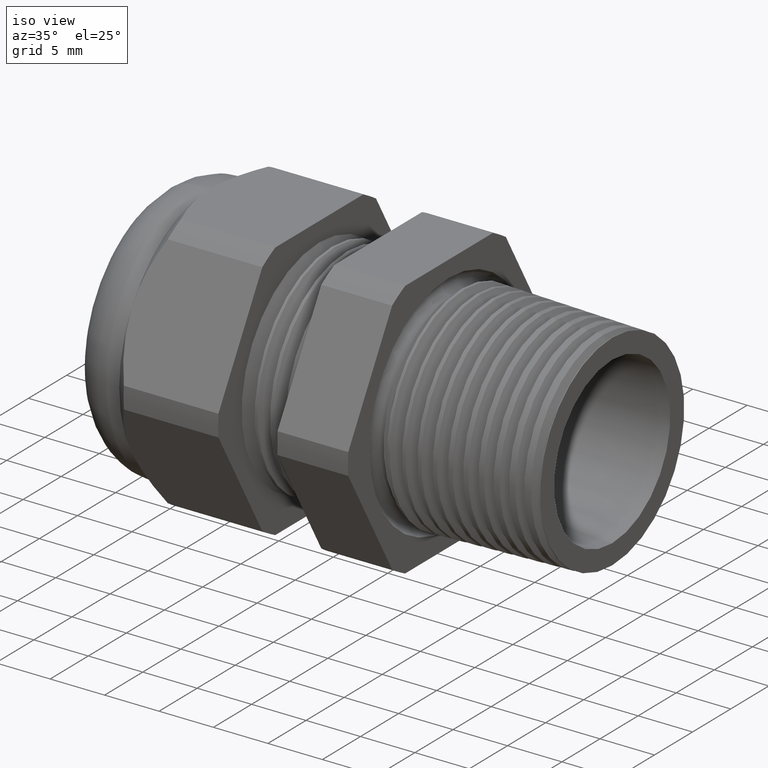
[diagram: clean part render]
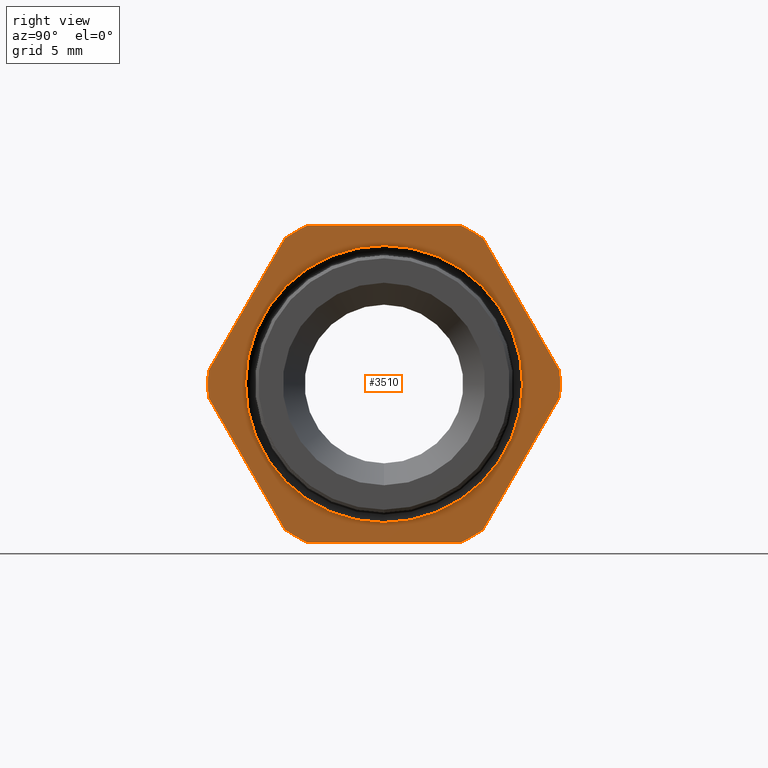
[diagram: tour spotlight — one face highlighted and labeled with its STEP entity id]
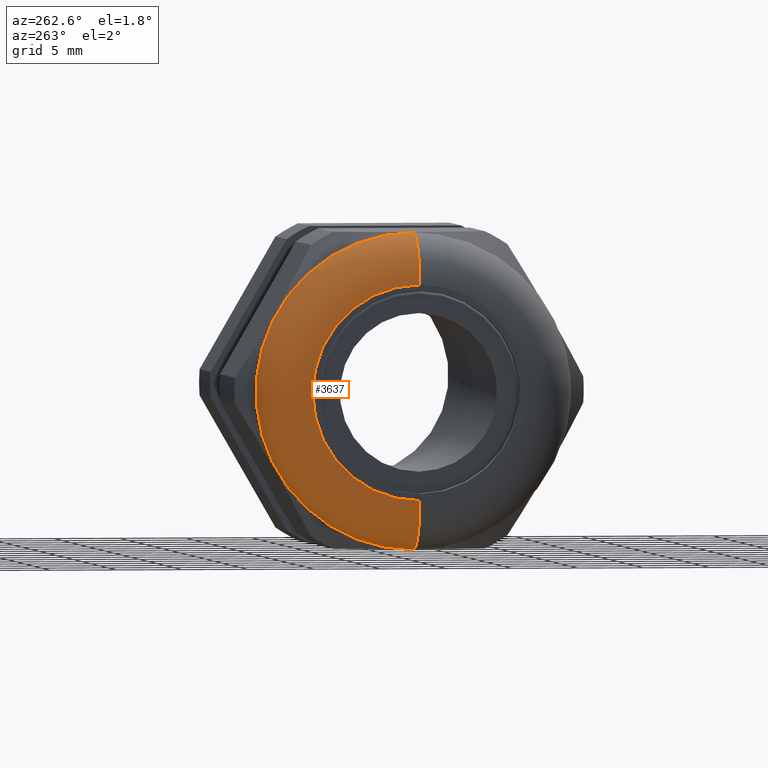
[diagram: tour spotlight — one face highlighted and labeled with its STEP entity id]
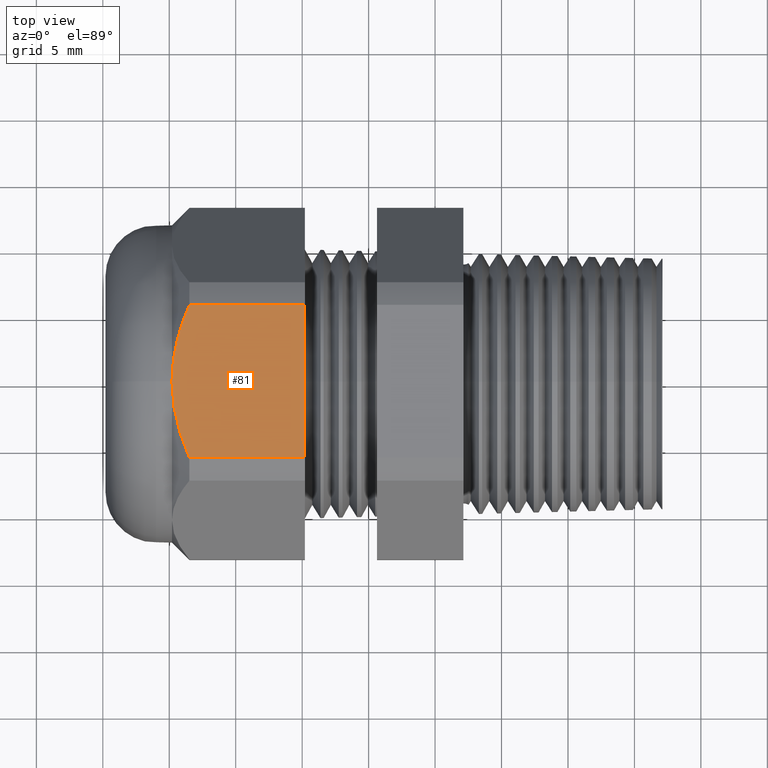
[diagram: tour spotlight — one face highlighted and labeled with its STEP entity id]
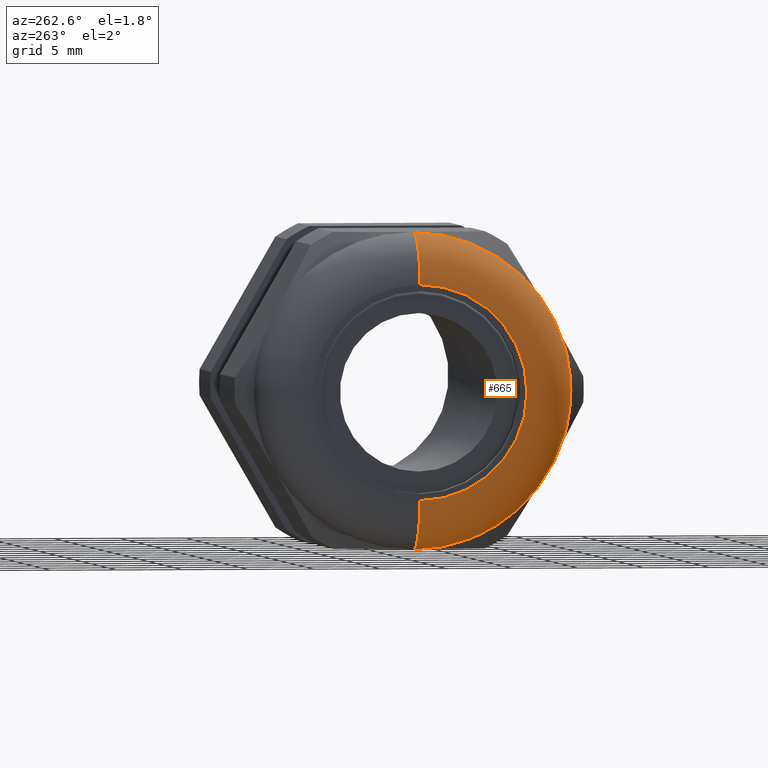
[diagram: tour spotlight — one face highlighted and labeled with its STEP entity id]
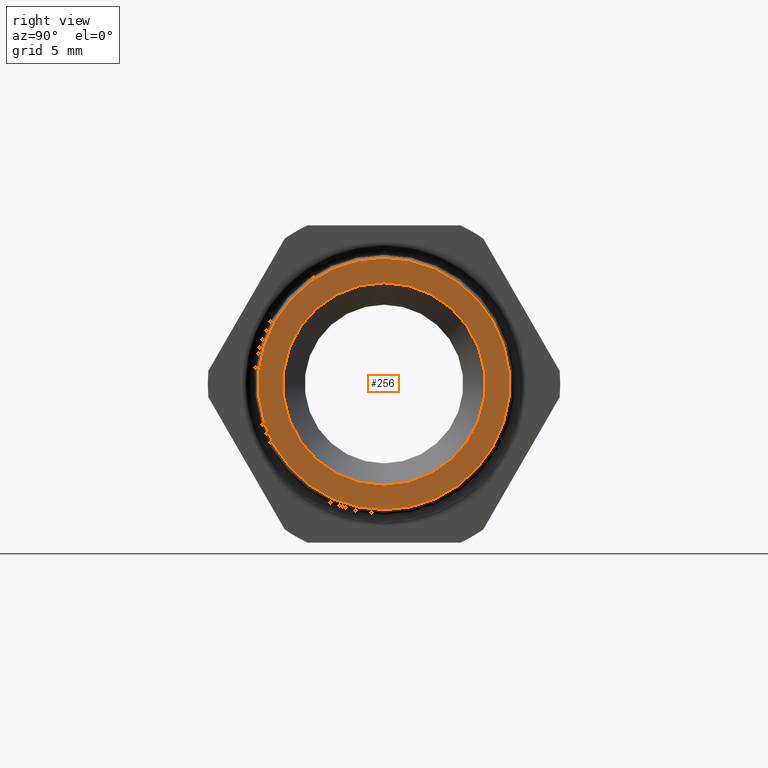
[diagram: tour spotlight — one face highlighted and labeled with its STEP entity id]
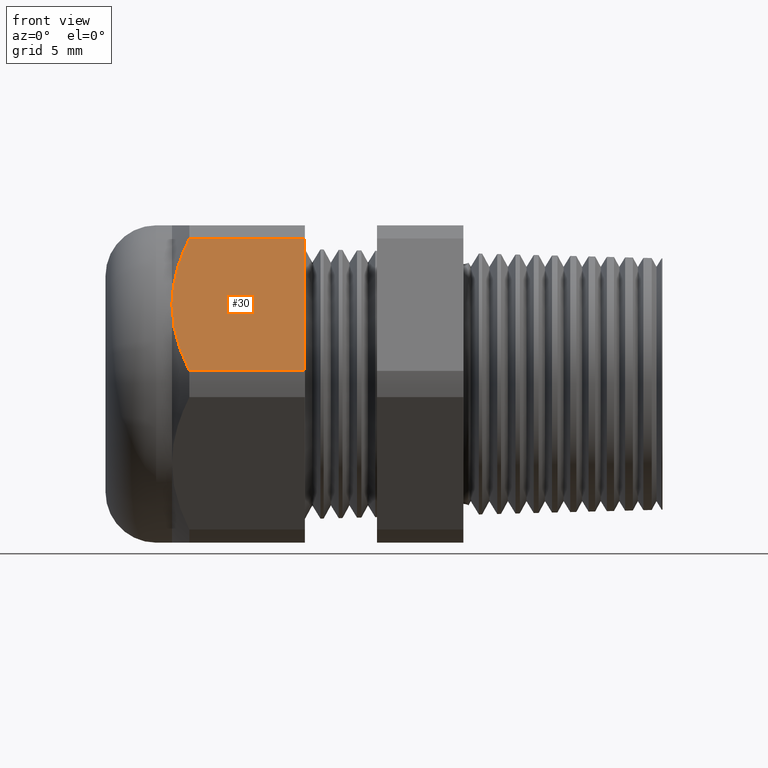
[diagram: tour spotlight — one face highlighted and labeled with its STEP entity id]
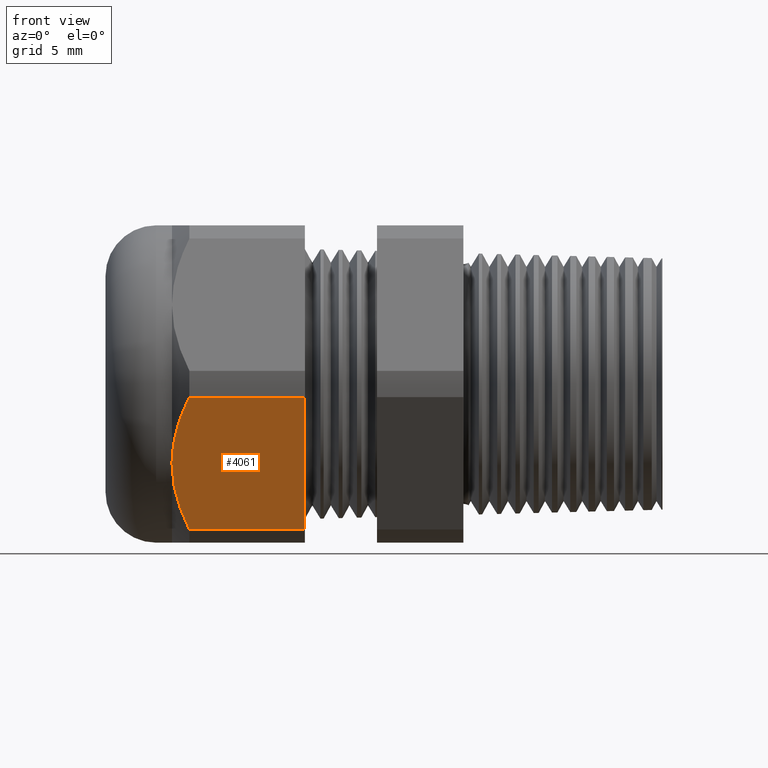
[diagram: tour spotlight — one face highlighted and labeled with its STEP entity id]
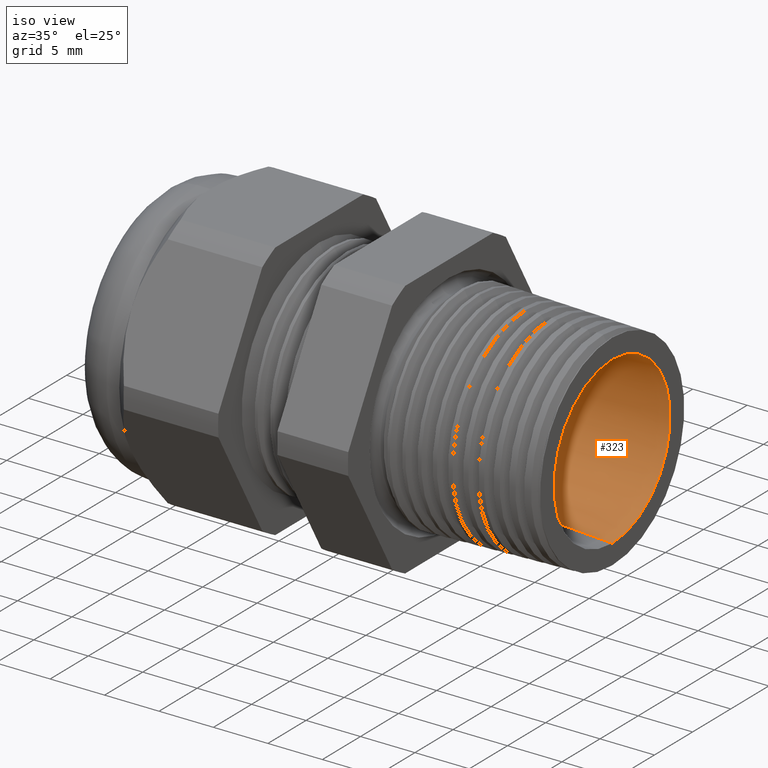
[diagram: tour spotlight — one face highlighted and labeled with its STEP entity id]
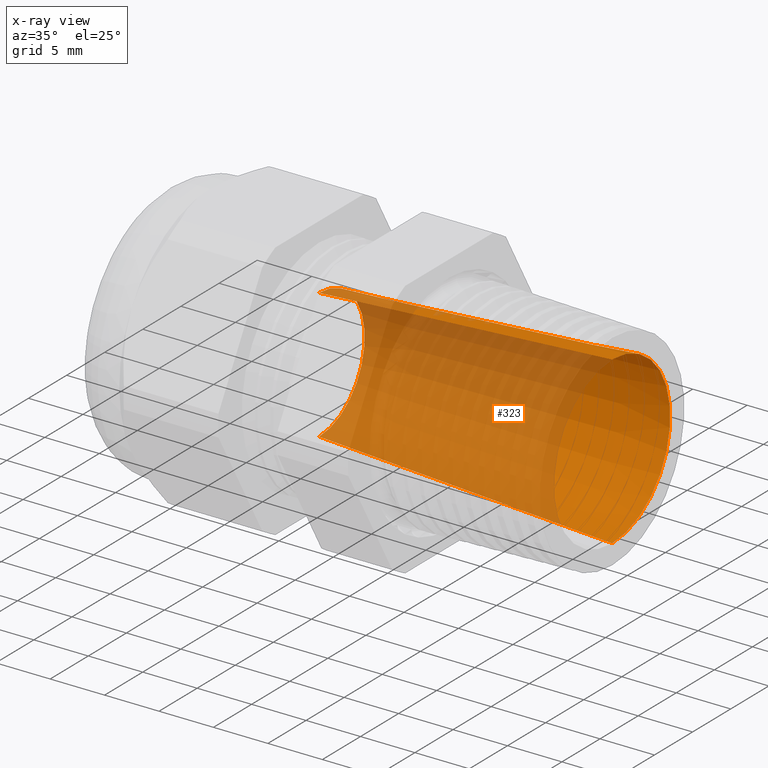
[diagram: x-ray of the same camera — body ghosted, this tour face saturated]
A machine part: a face-by-face anatomy tour. The part has 148 B-rep faces; the first image is the clean iso view, then the 8 largest visible faces are spotlighted one at a time (largest first), each with its STEP entity span.

Face 1 — right view, entity #3510. In plain terms, the highlighted planar face has unit normal (1, 0, 0).
Definition (entity closure, byte-faithful):
#2153 = DIRECTION ( 'NONE',  ( 0.0000000000000000000, 0.0000000000000000000, -1.000000000000000000 ) ) ;
#2154 = DIRECTION ( 'NONE',  ( 1.000000000000000000, 0.0000000000000000000, 0.0000000000000000000 ) ) ;
#2155 = CARTESIAN_POINT ( 'NONE',  ( -0.3100000000000000000, 0.9399999999999999500, 0.0000000000000000000 ) ) ;
#2156 = AXIS2_PLACEMENT_3D ( 'NONE', #2155, #2154, #2153 ) ;
#2157 = PLANE ( 'NONE',  #2156 ) ;
#2158 = FACE_BOUND ( 'NONE', #3659, .T. ) ;
#2159 = FACE_OUTER_BOUND ( 'NONE', #3578, .T. ) ;
#2183 = DIRECTION ( 'NONE',  ( 0.0000000000000000000, -1.000000000000000000, 0.0000000000000000000 ) ) ;
#2184 = VECTOR ( 'NONE', #2183, 39.37007874015748100 ) ;
#2185 = CARTESIAN_POINT ( 'NONE',  ( -0.3100000000000000000, 0.9399999999999999500, 0.4699999999999999200 ) ) ;
#2186 = LINE ( 'NONE', #2185, #2184 ) ;
#2193 = CARTESIAN_POINT ( 'NONE',  ( -0.3100000000000000000, 0.2264307620443832800, 0.4699999999999999200 ) ) ;
#2214 = DIRECTION ( 'NONE',  ( 0.0000000000000000000, 0.0000000000000000000, -1.000000000000000000 ) ) ;
#2215 = DIRECTION ( 'NONE',  ( 1.000000000000000000, 0.0000000000000000000, 0.0000000000000000000 ) ) ;
#2216 = CARTESIAN_POINT ( 'NONE',  ( -0.3100000000000000000, 0.0000000000000000000, 0.0000000000000000000 ) ) ;
#2217 = AXIS2_PLACEMENT_3D ( 'NONE', #2216, #2215, #2214 ) ;
#2218 = CIRCLE ( 'NONE', #2217, 0.5217000000000000500 ) ;
#2219 = DIRECTION ( 'NONE',  ( 0.0000000000000000000, -0.4999999999999998300, 0.8660254037844386000 ) ) ;
#2220 = VECTOR ( 'NONE', #2219, 39.37007874015748900 ) ;
#2221 = CARTESIAN_POINT ( 'NONE',  ( -0.3100000000000000000, 0.6420319397786862200, -0.1720319397786860500 ) ) ;
#2222 = LINE ( 'NONE', #2221, #2220 ) ;
#2223 = DIRECTION ( 'NONE',  ( 0.0000000000000000000, 0.0000000000000000000, -1.000000000000000000 ) ) ;
#2224 = DIRECTION ( 'NONE',  ( 1.000000000000000000, 0.0000000000000000000, 0.0000000000000000000 ) ) ;
#2225 = CARTESIAN_POINT ( 'NONE',  ( -0.3100000000000000000, 0.0000000000000000000, 0.0000000000000000000 ) ) ;
#2226 = AXIS2_PLACEMENT_3D ( 'NONE', #2225, #2224, #2223 ) ;
#2227 = CIRCLE ( 'NONE', #2226, 0.5217000000000000500 ) ;
#2228 = CARTESIAN_POINT ( 'NONE',  ( -0.3100000000000000000, 0.5202473208008776600, 0.03890520787129531800 ) ) ;
#2229 = CARTESIAN_POINT ( 'NONE',  ( -0.3100000000000000000, 0.2938165587564949300, 0.4310947921287048300 ) ) ;
#2248 = CARTESIAN_POINT ( 'NONE',  ( -0.3100000000000000000, -0.5202473208008777700, -0.03890520787129508200 ) ) ;
#2250 = DIRECTION ( 'NONE',  ( 0.0000000000000000000, 0.5000000000000000000, -0.8660254037844386000 ) ) ;
#2251 = VECTOR ( 'NONE', #2250, 39.37007874015748900 ) ;
#2252 = CARTESIAN_POINT ( 'NONE',  ( -0.3100000000000000000, -0.1720319397786861700, -0.6420319397786862200 ) ) ;
#2253 = LINE ( 'NONE', #2252, #2251 ) ;
#2254 = CARTESIAN_POINT ( 'NONE',  ( -0.3100000000000000000, -0.2938165587564944800, -0.4310947921287051100 ) ) ;
#2265 = DIRECTION ( 'NONE',  ( 0.0000000000000000000, 0.0000000000000000000, -1.000000000000000000 ) ) ;
#2266 = DIRECTION ( 'NONE',  ( 1.000000000000000000, 0.0000000000000000000, 0.0000000000000000000 ) ) ;
#2267 = CARTESIAN_POINT ( 'NONE',  ( -0.3100000000000000000, 0.0000000000000000000, 0.0000000000000000000 ) ) ;
#2268 = AXIS2_PLACEMENT_3D ( 'NONE', #2267, #2266, #2265 ) ;
#2269 = CIRCLE ( 'NONE', #2268, 0.5217000000000000500 ) ;
#2272 = CARTESIAN_POINT ( 'NONE',  ( -0.3100000000000000000, 0.5202473208008775400, -0.03890520787129545700 ) ) ;
#2273 = DIRECTION ( 'NONE',  ( 0.0000000000000000000, 0.4999999999999998300, 0.8660254037844386000 ) ) ;
#2274 = VECTOR ( 'NONE', #2273, 39.37007874015748900 ) ;
#2275 = CARTESIAN_POINT ( 'NONE',  ( -0.3100000000000000000, 0.6420319397786862200, 0.1720319397786860500 ) ) ;
#2276 = LINE ( 'NONE', #2275, #2274 ) ;
#2277 = CARTESIAN_POINT ( 'NONE',  ( -0.3100000000000000000, 0.2938165587564949800, -0.4310947921287047700 ) ) ;
#2285 = CARTESIAN_POINT ( 'NONE',  ( -0.3100000000000000000, -0.2938165587564947100, 0.4310947921287050500 ) ) ;
#2290 = DIRECTION ( 'NONE',  ( 0.0000000000000000000, -0.4999999999999998300, -0.8660254037844388200 ) ) ;
#2291 = VECTOR ( 'NONE', #2290, 39.37007874015748100 ) ;
#2292 = CARTESIAN_POINT ( 'NONE',  ( -0.3100000000000000000, -0.1720319397786862800, 0.6420319397786858900 ) ) ;
#2293 = LINE ( 'NONE', #2292, #2291 ) ;
#2295 = DIRECTION ( 'NONE',  ( 0.0000000000000000000, 0.0000000000000000000, -1.000000000000000000 ) ) ;
#2296 = DIRECTION ( 'NONE',  ( 1.000000000000000000, 0.0000000000000000000, 0.0000000000000000000 ) ) ;
#2297 = CARTESIAN_POINT ( 'NONE',  ( -0.3100000000000000000, 0.0000000000000000000, 0.0000000000000000000 ) ) ;
#2298 = AXIS2_PLACEMENT_3D ( 'NONE', #2297, #2296, #2295 ) ;
#2299 = CIRCLE ( 'NONE', #2298, 0.5217000000000000500 ) ;
#2305 = CARTESIAN_POINT ( 'NONE',  ( -0.3100000000000000000, -0.5202473208008777700, 0.03890520787129464500 ) ) ;
#2384 = DIRECTION ( 'NONE',  ( 0.0000000000000000000, 0.0000000000000000000, -1.000000000000000000 ) ) ;
#2385 = DIRECTION ( 'NONE',  ( -1.000000000000000000, 0.0000000000000000000, 0.0000000000000000000 ) ) ;
#2386 = CARTESIAN_POINT ( 'NONE',  ( -0.3100000000000000000, 0.0000000000000000000, 0.0000000000000000000 ) ) ;
#2387 = AXIS2_PLACEMENT_3D ( 'NONE', #2386, #2385, #2384 ) ;
#2388 = CIRCLE ( 'NONE', #2387, 0.4101888622149250100 ) ;
#2394 = CARTESIAN_POINT ( 'NONE',  ( -0.3100000000000000000, 0.0000000000000000000, -0.4101888622149250100 ) ) ;
#2402 = CARTESIAN_POINT ( 'NONE',  ( -0.3100000000000000000, 5.023364771574026400E-017, 0.4101888622149250100 ) ) ;
#2436 = CARTESIAN_POINT ( 'NONE',  ( -0.3100000000000000000, 0.2264307620443829200, -0.4700000000000000800 ) ) ;
#2437 = DIRECTION ( 'NONE',  ( 0.0000000000000000000, 0.0000000000000000000, -1.000000000000000000 ) ) ;
#2438 = DIRECTION ( 'NONE',  ( 1.000000000000000000, 0.0000000000000000000, 0.0000000000000000000 ) ) ;
#2439 = CARTESIAN_POINT ( 'NONE',  ( -0.3100000000000000000, 0.0000000000000000000, 0.0000000000000000000 ) ) ;
#2440 = AXIS2_PLACEMENT_3D ( 'NONE', #2439, #2438, #2437 ) ;
#2441 = CIRCLE ( 'NONE', #2440, 0.5217000000000000500 ) ;
#2442 = DIRECTION ( 'NONE',  ( 0.0000000000000000000, 0.0000000000000000000, -1.000000000000000000 ) ) ;
#2443 = DIRECTION ( 'NONE',  ( -1.000000000000000000, 0.0000000000000000000, 0.0000000000000000000 ) ) ;
#2444 = AXIS2_PLACEMENT_3D ( 'NONE', #2450, #2443, #2442 ) ;
#2445 = CIRCLE ( 'NONE', #2444, 0.4101888622149250100 ) ;
#2450 = CARTESIAN_POINT ( 'NONE',  ( -0.3100000000000000000, 0.0000000000000000000, 0.0000000000000000000 ) ) ;
#2453 = DIRECTION ( 'NONE',  ( 0.0000000000000000000, 0.0000000000000000000, -1.000000000000000000 ) ) ;
#2454 = DIRECTION ( 'NONE',  ( 1.000000000000000000, 0.0000000000000000000, 0.0000000000000000000 ) ) ;
#2455 = CARTESIAN_POINT ( 'NONE',  ( -0.3100000000000000000, 0.0000000000000000000, 0.0000000000000000000 ) ) ;
#2456 = AXIS2_PLACEMENT_3D ( 'NONE', #2455, #2454, #2453 ) ;
#2457 = CIRCLE ( 'NONE', #2456, 0.5217000000000000500 ) ;
#2458 = CARTESIAN_POINT ( 'NONE',  ( -0.3100000000000000000, -0.2264307620443835600, 0.4699999999999997500 ) ) ;
#2496 = DIRECTION ( 'NONE',  ( 0.0000000000000000000, 1.000000000000000000, 0.0000000000000000000 ) ) ;
#2497 = VECTOR ( 'NONE', #2496, 39.37007874015748100 ) ;
#2498 = CARTESIAN_POINT ( 'NONE',  ( -0.3100000000000000000, 0.9399999999999999500, -0.4700000000000002000 ) ) ;
#2499 = LINE ( 'NONE', #2498, #2497 ) ;
#2500 = CARTESIAN_POINT ( 'NONE',  ( -0.3100000000000000000, -0.2264307620443828100, -0.4700000000000002000 ) ) ;
#3510 = ADVANCED_FACE ( 'NONE', ( #2159, #2158 ), #2157, .T. ) ;
#3520 = ORIENTED_EDGE ( 'NONE', *, *, #3524, .T. ) ;
#3522 = VERTEX_POINT ( 'NONE', #2193 ) ;
#3524 = EDGE_CURVE ( 'NONE', #3522, #3650, #2186, .T. ) ;
#3527 = ORIENTED_EDGE ( 'NONE', *, *, #3538, .T. ) ;
#3534 = VERTEX_POINT ( 'NONE', #2229 ) ;
#3535 = VERTEX_POINT ( 'NONE', #2228 ) ;
#3536 = EDGE_CURVE ( 'NONE', #3534, #3522, #2227, .T. ) ;
#3537 = EDGE_CURVE ( 'NONE', #3535, #3534, #2222, .T. ) ;
#3538 = EDGE_CURVE ( 'NONE', #3544, #3535, #2218, .T. ) ;
#3539 = ORIENTED_EDGE ( 'NONE', *, *, #3537, .T. ) ;
#3540 = ORIENTED_EDGE ( 'NONE', *, *, #3536, .T. ) ;
#3542 = VERTEX_POINT ( 'NONE', #2277 ) ;
#3543 = EDGE_CURVE ( 'NONE', #3542, #3544, #2276, .T. ) ;
#3544 = VERTEX_POINT ( 'NONE', #2272 ) ;
#3547 = EDGE_CURVE ( 'NONE', #3556, #3662, #2269, .T. ) ;
#3548 = ORIENTED_EDGE ( 'NONE', *, *, #3543, .T. ) ;
#3549 = ORIENTED_EDGE ( 'NONE', *, *, #3547, .T. ) ;
#3556 = VERTEX_POINT ( 'NONE', #2254 ) ;
#3558 = EDGE_CURVE ( 'NONE', #3559, #3556, #2253, .T. ) ;
#3559 = VERTEX_POINT ( 'NONE', #2248 ) ;
#3560 = ORIENTED_EDGE ( 'NONE', *, *, #3558, .T. ) ;
#3566 = ORIENTED_EDGE ( 'NONE', *, *, #3571, .T. ) ;
#3568 = ORIENTED_EDGE ( 'NONE', *, *, #3574, .T. ) ;
#3569 = VERTEX_POINT ( 'NONE', #2305 ) ;
#3571 = EDGE_CURVE ( 'NONE', #3569, #3559, #2299, .T. ) ;
#3574 = EDGE_CURVE ( 'NONE', #3577, #3569, #2293, .T. ) ;
#3577 = VERTEX_POINT ( 'NONE', #2285 ) ;
#3578 = EDGE_LOOP ( 'NONE', ( #3548, #3527, #3539, #3540, #3520, #3652, #3568, #3566, #3560, #3549, #3665, #3663 ) ) ;
#3617 = VERTEX_POINT ( 'NONE', #2402 ) ;
#3624 = VERTEX_POINT ( 'NONE', #2394 ) ;
#3627 = EDGE_CURVE ( 'NONE', #3624, #3617, #2388, .T. ) ;
#3650 = VERTEX_POINT ( 'NONE', #2458 ) ;
#3651 = EDGE_CURVE ( 'NONE', #3650, #3577, #2457, .T. ) ;
#3652 = ORIENTED_EDGE ( 'NONE', *, *, #3651, .T. ) ;
#3655 = EDGE_CURVE ( 'NONE', #3617, #3624, #2445, .T. ) ;
#3656 = ORIENTED_EDGE ( 'NONE', *, *, #3655, .T. ) ;
#3658 = EDGE_CURVE ( 'NONE', #3661, #3542, #2441, .T. ) ;
#3659 = EDGE_LOOP ( 'NONE', ( #3660, #3656 ) ) ;
#3660 = ORIENTED_EDGE ( 'NONE', *, *, #3627, .T. ) ;
#3661 = VERTEX_POINT ( 'NONE', #2436 ) ;
#3662 = VERTEX_POINT ( 'NONE', #2500 ) ;
#3663 = ORIENTED_EDGE ( 'NONE', *, *, #3658, .T. ) ;
#3664 = EDGE_CURVE ( 'NONE', #3662, #3661, #2499, .T. ) ;
#3665 = ORIENTED_EDGE ( 'NONE', *, *, #3664, .T. ) ;

Face 2 — auxiliary view, entity #3637. In plain terms, the highlighted toroidal blend (fillet) surface has major radius 8.128 mm and minor (blend) radius 3.81 mm.
Definition (entity closure, byte-faithful):
#2088 = CARTESIAN_POINT ( 'NONE',  ( -1.219999999999999800, 3.918869757271530800E-017, -0.3200000000000000100 ) ) ;
#2089 = AXIS2_PLACEMENT_3D ( 'NONE', #2088, #2148, #2147 ) ;
#2090 = CIRCLE ( 'NONE', #2089, 0.1499999999999999700 ) ;
#2094 = CARTESIAN_POINT ( 'NONE',  ( -1.369999999999999900, 4.837354856632045600E-017, -0.3200000000000000100 ) ) ;
#2123 = DIRECTION ( 'NONE',  ( 0.0000000000000000000, 0.0000000000000000000, 1.000000000000000000 ) ) ;
#2124 = DIRECTION ( 'NONE',  ( -1.000000000000000000, 0.0000000000000000000, 0.0000000000000000000 ) ) ;
#2125 = CARTESIAN_POINT ( 'NONE',  ( -1.369999999999999900, 0.0000000000000000000, 0.0000000000000000000 ) ) ;
#2126 = AXIS2_PLACEMENT_3D ( 'NONE', #2125, #2124, #2123 ) ;
#2127 = CIRCLE ( 'NONE', #2126, 0.3200000000000000100 ) ;
#2134 = DIRECTION ( 'NONE',  ( 0.0000000000000000000, 0.0000000000000000000, -1.000000000000000000 ) ) ;
#2135 = DIRECTION ( 'NONE',  ( 0.0000000000000000000, -1.000000000000000000, 0.0000000000000000000 ) ) ;
#2136 = CARTESIAN_POINT ( 'NONE',  ( -1.219999999999999800, 0.0000000000000000000, 0.3200000000000000100 ) ) ;
#2137 = AXIS2_PLACEMENT_3D ( 'NONE', #2136, #2135, #2134 ) ;
#2138 = CIRCLE ( 'NONE', #2137, 0.1499999999999999700 ) ;
#2140 = CARTESIAN_POINT ( 'NONE',  ( -1.369999999999999900, 0.0000000000000000000, 0.3200000000000000100 ) ) ;
#2147 = DIRECTION ( 'NONE',  ( 0.0000000000000000000, -1.224646799147353200E-016, 1.000000000000000000 ) ) ;
#2148 = DIRECTION ( 'NONE',  ( 0.0000000000000000000, 1.000000000000000000, 1.224646799147353200E-016 ) ) ;
#2343 = DIRECTION ( 'NONE',  ( 0.0000000000000000000, 0.0000000000000000000, 1.000000000000000000 ) ) ;
#2344 = DIRECTION ( 'NONE',  ( 1.000000000000000000, 0.0000000000000000000, 0.0000000000000000000 ) ) ;
#2345 = CARTESIAN_POINT ( 'NONE',  ( -1.219999999999999800, 0.0000000000000000000, 0.0000000000000000000 ) ) ;
#2346 = AXIS2_PLACEMENT_3D ( 'NONE', #2345, #2344, #2343 ) ;
#2347 = CIRCLE ( 'NONE', #2346, 0.4699999999999999700 ) ;
#2423 = CARTESIAN_POINT ( 'NONE',  ( -1.219999999999999800, 5.755839955992559700E-017, 0.4699999999999999700 ) ) ;
#2424 = DIRECTION ( 'NONE',  ( 0.0000000000000000000, 0.0000000000000000000, 1.000000000000000000 ) ) ;
#2425 = DIRECTION ( 'NONE',  ( -1.000000000000000000, 0.0000000000000000000, 0.0000000000000000000 ) ) ;
#2426 = CARTESIAN_POINT ( 'NONE',  ( -1.219999999999999800, 0.0000000000000000000, 0.0000000000000000000 ) ) ;
#2427 = AXIS2_PLACEMENT_3D ( 'NONE', #2426, #2425, #2424 ) ;
#2428 = TOROIDAL_SURFACE ( 'NONE', #2427, 0.3200000000000000100, 0.1499999999999999900 ) ;
#2429 = FACE_OUTER_BOUND ( 'NONE', #3636, .T. ) ;
#2435 = CARTESIAN_POINT ( 'NONE',  ( -1.219999999999999800, 0.0000000000000000000, -0.4699999999999999700 ) ) ;
#3470 = ORIENTED_EDGE ( 'NONE', *, *, #3489, .F. ) ;
#3471 = VERTEX_POINT ( 'NONE', #2094 ) ;
#3472 = ORIENTED_EDGE ( 'NONE', *, *, #3478, .T. ) ;
#3478 = EDGE_CURVE ( 'NONE', #3633, #3471, #2090, .T. ) ;
#3484 = VERTEX_POINT ( 'NONE', #2140 ) ;
#3485 = ORIENTED_EDGE ( 'NONE', *, *, #3486, .F. ) ;
#3486 = EDGE_CURVE ( 'NONE', #3638, #3484, #2138, .T. ) ;
#3489 = EDGE_CURVE ( 'NONE', #3484, #3471, #2127, .T. ) ;
#3611 = EDGE_CURVE ( 'NONE', #3633, #3638, #2347, .T. ) ;
#3633 = VERTEX_POINT ( 'NONE', #2435 ) ;
#3635 = ORIENTED_EDGE ( 'NONE', *, *, #3611, .F. ) ;
#3636 = EDGE_LOOP ( 'NONE', ( #3635, #3472, #3470, #3485 ) ) ;
#3637 = ADVANCED_FACE ( 'NONE', ( #2429 ), #2428, .T. ) ;
#3638 = VERTEX_POINT ( 'NONE', #2423 ) ;

Face 3 — top view, entity #81. In plain terms, the highlighted planar face has unit normal (0, 0, 1).
Definition (entity closure, byte-faithful):
#17 = EDGE_CURVE ( 'NONE', #18, #19, #784, .T. ) ;
#18 = VERTEX_POINT ( 'NONE', #775 ) ;
#19 = VERTEX_POINT ( 'NONE', #774 ) ;
#65 = ORIENTED_EDGE ( 'NONE', *, *, #17, .F. ) ;
#66 = ORIENTED_EDGE ( 'NONE', *, *, #67, .F. ) ;
#67 = EDGE_CURVE ( 'NONE', #85, #18, #849, .T. ) ;
#81 = ADVANCED_FACE ( 'NONE', ( #881 ), #880, .T. ) ;
#82 = EDGE_LOOP ( 'NONE', ( #83, #87, #89, #65, #66 ) ) ;
#83 = ORIENTED_EDGE ( 'NONE', *, *, #84, .T. ) ;
#84 = EDGE_CURVE ( 'NONE', #85, #86, #875, .T. ) ;
#85 = VERTEX_POINT ( 'NONE', #927 ) ;
#86 = VERTEX_POINT ( 'NONE', #926 ) ;
#87 = ORIENTED_EDGE ( 'NONE', *, *, #88, .T. ) ;
#88 = EDGE_CURVE ( 'NONE', #86, #3719, #925, .T. ) ;
#89 = ORIENTED_EDGE ( 'NONE', *, *, #90, .T. ) ;
#90 = EDGE_CURVE ( 'NONE', #3719, #19, #924, .T. ) ;
#774 = CARTESIAN_POINT ( 'NONE',  ( -1.121449606299212300, -0.2264307620443835000, 0.4699999999999999200 ) ) ;
#775 = CARTESIAN_POINT ( 'NONE',  ( -0.7794488188976376200, -0.2264307620443835600, 0.4699999999999997500 ) ) ;
#776 = DIRECTION ( 'NONE',  ( -1.000000000000000000, 0.0000000000000000000, 0.0000000000000000000 ) ) ;
#777 = VECTOR ( 'NONE', #776, 39.37007874015748100 ) ;
#778 = CARTESIAN_POINT ( 'NONE',  ( 0.2800000000000000300, -0.2264307620443835600, 0.4699999999999997500 ) ) ;
#784 = LINE ( 'NONE', #778, #777 ) ;
#845 = DIRECTION ( 'NONE',  ( 0.0000000000000000000, -1.000000000000000000, 0.0000000000000000000 ) ) ;
#846 = VECTOR ( 'NONE', #845, 39.37007874015748100 ) ;
#847 = CARTESIAN_POINT ( 'NONE',  ( -0.7794488188976376200, 0.4000000000000000200, 0.4699999999999999200 ) ) ;
#849 = LINE ( 'NONE', #847, #846 ) ;
#874 = CARTESIAN_POINT ( 'NONE',  ( 0.2800000000000000300, 0.2264307620443832800, 0.4699999999999999200 ) ) ;
#875 = LINE ( 'NONE', #874, #929 ) ;
#876 = DIRECTION ( 'NONE',  ( 1.000000000000000000, 0.0000000000000000000, 0.0000000000000000000 ) ) ;
#877 = DIRECTION ( 'NONE',  ( 0.0000000000000000000, 0.0000000000000000000, 1.000000000000000000 ) ) ;
#878 = CARTESIAN_POINT ( 'NONE',  ( 0.2800000000000000300, -0.2264307620443832800, 0.4699999999999999200 ) ) ;
#879 = AXIS2_PLACEMENT_3D ( 'NONE', #878, #877, #876 ) ;
#880 = PLANE ( 'NONE',  #879 ) ;
#881 = FACE_OUTER_BOUND ( 'NONE', #82, .T. ) ;
#906 = CARTESIAN_POINT ( 'NONE',  ( -1.121449606299212300, -0.2264307620443835000, 0.4699999999999999200 ) ) ;
#907 = CARTESIAN_POINT ( 'NONE',  ( -1.129186486498509100, -0.2086048696456209200, 0.4699999999999999700 ) ) ;
#908 = CARTESIAN_POINT ( 'NONE',  ( -1.136335193768681600, -0.1904348960138967400, 0.4700000000000000300 ) ) ;
#909 = CARTESIAN_POINT ( 'NONE',  ( -1.149098179357229500, -0.1532690879941744400, 0.4699999999999999200 ) ) ;
#910 = CARTESIAN_POINT ( 'NONE',  ( -1.154617215409026600, -0.1345390626635396500, 0.4700000000000000300 ) ) ;
#911 = CARTESIAN_POINT ( 'NONE',  ( -1.168164424944326200, -0.07783554612607096500, 0.4699999999999999700 ) ) ;
#912 = CARTESIAN_POINT ( 'NONE',  ( -1.173149606299212800, -0.03934296915062187500, 0.4699999999999999700 ) ) ;
#913 = CARTESIAN_POINT ( 'NONE',  ( -1.173149606299212600, 0.0000000000000000000, 0.4699999999999999200 ) ) ;
#914 = CARTESIAN_POINT ( 'NONE',  ( -1.173149606299212600, 0.0000000000000000000, 0.4699999999999999200 ) ) ;
#915 = CARTESIAN_POINT ( 'NONE',  ( -1.173149606299212600, 0.01964242875915811100, 0.4699999999999999200 ) ) ;
#916 = CARTESIAN_POINT ( 'NONE',  ( -1.171902846507194800, 0.03924163778662349800, 0.4699999999999999700 ) ) ;
#917 = CARTESIAN_POINT ( 'NONE',  ( -1.167135305686521900, 0.07782038235249975900, 0.4699999999999997500 ) ) ;
#918 = CARTESIAN_POINT ( 'NONE',  ( -1.163616828190520400, 0.09688970369981485300, 0.4699999999999999700 ) ) ;
#919 = CARTESIAN_POINT ( 'NONE',  ( -1.154587889492758400, 0.1346420459264779700, 0.4699999999999999200 ) ) ;
#920 = CARTESIAN_POINT ( 'NONE',  ( -1.149078608016165900, 0.1533252955870069400, 0.4700000000000000300 ) ) ;
#921 = CARTESIAN_POINT ( 'NONE',  ( -1.136360429725379300, 0.1903621927138393300, 0.4699999999999999200 ) ) ;
#922 = CARTESIAN_POINT ( 'NONE',  ( -1.129186336080986200, 0.2086052162099338000, 0.4699999999999998600 ) ) ;
#923 = CARTESIAN_POINT ( 'NONE',  ( -1.121449606299212300, 0.2264307620443833400, 0.4700000000000000300 ) ) ;
#924 = B_SPLINE_CURVE_WITH_KNOTS ( 'NONE', 3,
 ( #913, #912, #911, #910, #909, #908, #907, #906 ),
 .UNSPECIFIED., .F., .F.,
 ( 4, 2, 2, 4 ),
 ( 0.01501897965151429600, 0.01796263803772295600, 0.01943446723082728800, 0.02090629642393161700 ),
 .UNSPECIFIED. ) ;
#925 = B_SPLINE_CURVE_WITH_KNOTS ( 'NONE', 3,
 ( #923, #922, #921, #920, #919, #918, #917, #916, #915, #914 ),
 .UNSPECIFIED., .F., .F.,
 ( 4, 2, 2, 2, 4 ),
 ( 0.009140358755258091600, 0.01061001397932214400, 0.01207966920338619500, 0.01354932442745024500, 0.01501897965151429600 ),
 .UNSPECIFIED. ) ;
#926 = CARTESIAN_POINT ( 'NONE',  ( -1.121449606299212300, 0.2264307620443833400, 0.4700000000000000300 ) ) ;
#927 = CARTESIAN_POINT ( 'NONE',  ( -0.7794488188976376200, 0.2264307620443832800, 0.4699999999999999200 ) ) ;
#928 = DIRECTION ( 'NONE',  ( -1.000000000000000000, 0.0000000000000000000, 0.0000000000000000000 ) ) ;
#929 = VECTOR ( 'NONE', #928, 39.37007874015748100 ) ;
#2592 = CARTESIAN_POINT ( 'NONE',  ( -1.173149606299212600, 0.0000000000000000000, 0.4699999999999999200 ) ) ;
#3719 = VERTEX_POINT ( 'NONE', #2592 ) ;

Face 4 — auxiliary view, entity #665. In plain terms, the highlighted toroidal blend (fillet) surface has major radius 8.128 mm and minor (blend) radius 3.81 mm.
Definition (entity closure, byte-faithful):
#220 = EDGE_CURVE ( 'NONE', #3471, #3484, #1206, .T. ) ;
#233 = EDGE_CURVE ( 'NONE', #3638, #3633, #1247, .T. ) ;
#665 = ADVANCED_FACE ( 'NONE', ( #1851 ), #1850, .T. ) ;
#666 = EDGE_LOOP ( 'NONE', ( #667, #668, #669, #719 ) ) ;
#667 = ORIENTED_EDGE ( 'NONE', *, *, #3478, .F. ) ;
#668 = ORIENTED_EDGE ( 'NONE', *, *, #233, .F. ) ;
#669 = ORIENTED_EDGE ( 'NONE', *, *, #3486, .T. ) ;
#719 = ORIENTED_EDGE ( 'NONE', *, *, #220, .F. ) ;
#1189 = CARTESIAN_POINT ( 'NONE',  ( -1.219999999999999800, 0.0000000000000000000, 0.0000000000000000000 ) ) ;
#1202 = DIRECTION ( 'NONE',  ( 0.0000000000000000000, 0.0000000000000000000, 1.000000000000000000 ) ) ;
#1203 = DIRECTION ( 'NONE',  ( -1.000000000000000000, 0.0000000000000000000, 0.0000000000000000000 ) ) ;
#1204 = CARTESIAN_POINT ( 'NONE',  ( -1.369999999999999900, 0.0000000000000000000, 0.0000000000000000000 ) ) ;
#1205 = AXIS2_PLACEMENT_3D ( 'NONE', #1204, #1203, #1202 ) ;
#1206 = CIRCLE ( 'NONE', #1205, 0.3200000000000000100 ) ;
#1244 = DIRECTION ( 'NONE',  ( 0.0000000000000000000, 0.0000000000000000000, 1.000000000000000000 ) ) ;
#1245 = DIRECTION ( 'NONE',  ( 1.000000000000000000, 0.0000000000000000000, 0.0000000000000000000 ) ) ;
#1246 = AXIS2_PLACEMENT_3D ( 'NONE', #1189, #1245, #1244 ) ;
#1247 = CIRCLE ( 'NONE', #1246, 0.4699999999999999700 ) ;
#1845 = DIRECTION ( 'NONE',  ( 0.0000000000000000000, 0.0000000000000000000, 1.000000000000000000 ) ) ;
#1846 = DIRECTION ( 'NONE',  ( -1.000000000000000000, 0.0000000000000000000, 0.0000000000000000000 ) ) ;
#1847 = CARTESIAN_POINT ( 'NONE',  ( -1.219999999999999800, 0.0000000000000000000, 0.0000000000000000000 ) ) ;
#1848 = AXIS2_PLACEMENT_3D ( 'NONE', #1847, #1846, #1845 ) ;
#1850 = TOROIDAL_SURFACE ( 'NONE', #1848, 0.3200000000000000100, 0.1499999999999999900 ) ;
#1851 = FACE_OUTER_BOUND ( 'NONE', #666, .T. ) ;
#2088 = CARTESIAN_POINT ( 'NONE',  ( -1.219999999999999800, 3.918869757271530800E-017, -0.3200000000000000100 ) ) ;
#2089 = AXIS2_PLACEMENT_3D ( 'NONE', #2088, #2148, #2147 ) ;
#2090 = CIRCLE ( 'NONE', #2089, 0.1499999999999999700 ) ;
#2094 = CARTESIAN_POINT ( 'NONE',  ( -1.369999999999999900, 4.837354856632045600E-017, -0.3200000000000000100 ) ) ;
#2134 = DIRECTION ( 'NONE',  ( 0.0000000000000000000, 0.0000000000000000000, -1.000000000000000000 ) ) ;
#2135 = DIRECTION ( 'NONE',  ( 0.0000000000000000000, -1.000000000000000000, 0.0000000000000000000 ) ) ;
#2136 = CARTESIAN_POINT ( 'NONE',  ( -1.219999999999999800, 0.0000000000000000000, 0.3200000000000000100 ) ) ;
#2137 = AXIS2_PLACEMENT_3D ( 'NONE', #2136, #2135, #2134 ) ;
#2138 = CIRCLE ( 'NONE', #2137, 0.1499999999999999700 ) ;
#2140 = CARTESIAN_POINT ( 'NONE',  ( -1.369999999999999900, 0.0000000000000000000, 0.3200000000000000100 ) ) ;
#2147 = DIRECTION ( 'NONE',  ( 0.0000000000000000000, -1.224646799147353200E-016, 1.000000000000000000 ) ) ;
#2148 = DIRECTION ( 'NONE',  ( 0.0000000000000000000, 1.000000000000000000, 1.224646799147353200E-016 ) ) ;
#2423 = CARTESIAN_POINT ( 'NONE',  ( -1.219999999999999800, 5.755839955992559700E-017, 0.4699999999999999700 ) ) ;
#2435 = CARTESIAN_POINT ( 'NONE',  ( -1.219999999999999800, 0.0000000000000000000, -0.4699999999999999700 ) ) ;
#3471 = VERTEX_POINT ( 'NONE', #2094 ) ;
#3478 = EDGE_CURVE ( 'NONE', #3633, #3471, #2090, .T. ) ;
#3484 = VERTEX_POINT ( 'NONE', #2140 ) ;
#3486 = EDGE_CURVE ( 'NONE', #3638, #3484, #2138, .T. ) ;
#3633 = VERTEX_POINT ( 'NONE', #2435 ) ;
#3638 = VERTEX_POINT ( 'NONE', #2423 ) ;

Face 5 — right view, entity #256. In plain terms, the highlighted planar face has unit normal (1, 0, 0).
Definition (entity closure, byte-faithful):
#225 = EDGE_CURVE ( 'NONE', #3669, #3670, #1201, .T. ) ;
#255 = EDGE_CURVE ( 'NONE', #4043, #4039, #1219, .T. ) ;
#256 = ADVANCED_FACE ( 'NONE', ( #1283, #1278 ), #1277, .T. ) ;
#257 = EDGE_LOOP ( 'NONE', ( #258, #259 ) ) ;
#258 = ORIENTED_EDGE ( 'NONE', *, *, #225, .T. ) ;
#259 = ORIENTED_EDGE ( 'NONE', *, *, #3674, .T. ) ;
#260 = EDGE_LOOP ( 'NONE', ( #261, #311 ) ) ;
#261 = ORIENTED_EDGE ( 'NONE', *, *, #255, .F. ) ;
#311 = ORIENTED_EDGE ( 'NONE', *, *, #4041, .F. ) ;
#1197 = DIRECTION ( 'NONE',  ( 0.0000000000000000000, 0.0000000000000000000, -1.000000000000000000 ) ) ;
#1198 = DIRECTION ( 'NONE',  ( 1.000000000000000000, 0.0000000000000000000, 0.0000000000000000000 ) ) ;
#1199 = CARTESIAN_POINT ( 'NONE',  ( 0.2800000000000000800, 0.0000000000000000000, 0.0000000000000000000 ) ) ;
#1200 = AXIS2_PLACEMENT_3D ( 'NONE', #1199, #1198, #1197 ) ;
#1201 = CIRCLE ( 'NONE', #1200, 0.3722573563217862500 ) ;
#1219 = CIRCLE ( 'NONE', #1282, 0.3000000000000000400 ) ;
#1273 = DIRECTION ( 'NONE',  ( 0.0000000000000000000, 0.0000000000000000000, -1.000000000000000000 ) ) ;
#1274 = DIRECTION ( 'NONE',  ( 1.000000000000000000, 0.0000000000000000000, 0.0000000000000000000 ) ) ;
#1275 = CARTESIAN_POINT ( 'NONE',  ( 0.2800000000000000300, 0.3000000000000000400, 0.0000000000000000000 ) ) ;
#1276 = AXIS2_PLACEMENT_3D ( 'NONE', #1275, #1274, #1273 ) ;
#1277 = PLANE ( 'NONE',  #1276 ) ;
#1278 = FACE_BOUND ( 'NONE', #260, .T. ) ;
#1279 = DIRECTION ( 'NONE',  ( 0.0000000000000000000, 0.0000000000000000000, -1.000000000000000000 ) ) ;
#1280 = DIRECTION ( 'NONE',  ( 1.000000000000000000, 0.0000000000000000000, 0.0000000000000000000 ) ) ;
#1281 = CARTESIAN_POINT ( 'NONE',  ( 0.2800000000000000300, 0.0000000000000000000, 0.0000000000000000000 ) ) ;
#1282 = AXIS2_PLACEMENT_3D ( 'NONE', #1281, #1280, #1279 ) ;
#1283 = FACE_OUTER_BOUND ( 'NONE', #257, .T. ) ;
#2484 = DIRECTION ( 'NONE',  ( 0.0000000000000000000, 0.0000000000000000000, -1.000000000000000000 ) ) ;
#2485 = DIRECTION ( 'NONE',  ( 1.000000000000000000, 0.0000000000000000000, 0.0000000000000000000 ) ) ;
#2486 = CARTESIAN_POINT ( 'NONE',  ( 0.2800000000000000800, 0.0000000000000000000, 0.0000000000000000000 ) ) ;
#2487 = AXIS2_PLACEMENT_3D ( 'NONE', #2486, #2485, #2484 ) ;
#2488 = CIRCLE ( 'NONE', #2487, 0.3722573563217862500 ) ;
#2493 = CARTESIAN_POINT ( 'NONE',  ( 0.2800000000000000800, 4.559240921212014400E-017, -0.3722573563217862500 ) ) ;
#2494 = CARTESIAN_POINT ( 'NONE',  ( 0.2800000000000000800, 0.0000000000000000000, 0.3722573563217862500 ) ) ;
#3157 = CARTESIAN_POINT ( 'NONE',  ( 0.2800000000000000300, 3.673940397442060700E-017, 0.3000000000000000400 ) ) ;
#3215 = CARTESIAN_POINT ( 'NONE',  ( 0.2800000000000000300, 0.0000000000000000000, -0.3000000000000000400 ) ) ;
#3216 = DIRECTION ( 'NONE',  ( 0.0000000000000000000, 0.0000000000000000000, -1.000000000000000000 ) ) ;
#3217 = DIRECTION ( 'NONE',  ( 1.000000000000000000, 0.0000000000000000000, 0.0000000000000000000 ) ) ;
#3218 = CARTESIAN_POINT ( 'NONE',  ( 0.2800000000000000300, 0.0000000000000000000, 0.0000000000000000000 ) ) ;
#3219 = AXIS2_PLACEMENT_3D ( 'NONE', #3218, #3217, #3216 ) ;
#3220 = CIRCLE ( 'NONE', #3219, 0.3000000000000000400 ) ;
#3669 = VERTEX_POINT ( 'NONE', #2494 ) ;
#3670 = VERTEX_POINT ( 'NONE', #2493 ) ;
#3674 = EDGE_CURVE ( 'NONE', #3670, #3669, #2488, .T. ) ;
#4039 = VERTEX_POINT ( 'NONE', #3157 ) ;
#4041 = EDGE_CURVE ( 'NONE', #4039, #4043, #3220, .T. ) ;
#4043 = VERTEX_POINT ( 'NONE', #3215 ) ;

Face 6 — front view, entity #30. In plain terms, the highlighted planar face has unit normal (0, -0.866, 0.5).
Definition (entity closure, byte-faithful):
#13 = EDGE_CURVE ( 'NONE', #34, #23, #728, .T. ) ;
#22 = EDGE_CURVE ( 'NONE', #23, #24, #768, .T. ) ;
#23 = VERTEX_POINT ( 'NONE', #764 ) ;
#24 = VERTEX_POINT ( 'NONE', #763 ) ;
#30 = ADVANCED_FACE ( 'NONE', ( #757 ), #810, .T. ) ;
#31 = EDGE_LOOP ( 'NONE', ( #32, #36, #93, #95, #96 ) ) ;
#32 = ORIENTED_EDGE ( 'NONE', *, *, #33, .T. ) ;
#33 = EDGE_CURVE ( 'NONE', #34, #35, #805, .T. ) ;
#34 = VERTEX_POINT ( 'NONE', #801 ) ;
#35 = VERTEX_POINT ( 'NONE', #800 ) ;
#36 = ORIENTED_EDGE ( 'NONE', *, *, #91, .T. ) ;
#91 = EDGE_CURVE ( 'NONE', #35, #92, #904, .T. ) ;
#92 = VERTEX_POINT ( 'NONE', #905 ) ;
#93 = ORIENTED_EDGE ( 'NONE', *, *, #94, .T. ) ;
#94 = EDGE_CURVE ( 'NONE', #92, #24, #951, .T. ) ;
#95 = ORIENTED_EDGE ( 'NONE', *, *, #22, .F. ) ;
#96 = ORIENTED_EDGE ( 'NONE', *, *, #13, .F. ) ;
#721 = DIRECTION ( 'NONE',  ( 0.0000000000000000000, -0.4999999999999998300, -0.8660254037844388200 ) ) ;
#722 = VECTOR ( 'NONE', #721, 39.37007874015748100 ) ;
#723 = CARTESIAN_POINT ( 'NONE',  ( -0.7794488188976376200, -0.3070319397786862600, 0.4082050807568876600 ) ) ;
#728 = LINE ( 'NONE', #723, #722 ) ;
#757 = FACE_OUTER_BOUND ( 'NONE', #31, .T. ) ;
#763 = CARTESIAN_POINT ( 'NONE',  ( -1.121449606299212300, -0.5202473208008778800, 0.03890520787129471400 ) ) ;
#764 = CARTESIAN_POINT ( 'NONE',  ( -0.7794488188976376200, -0.5202473208008777700, 0.03890520787129464500 ) ) ;
#765 = DIRECTION ( 'NONE',  ( -1.000000000000000000, 0.0000000000000000000, 0.0000000000000000000 ) ) ;
#766 = VECTOR ( 'NONE', #765, 39.37007874015748100 ) ;
#767 = CARTESIAN_POINT ( 'NONE',  ( 0.2800000000000000300, -0.5202473208008777700, 0.03890520787129464500 ) ) ;
#768 = LINE ( 'NONE', #767, #766 ) ;
#800 = CARTESIAN_POINT ( 'NONE',  ( -1.121449606299212300, -0.2938165587564947100, 0.4310947921287050500 ) ) ;
#801 = CARTESIAN_POINT ( 'NONE',  ( -0.7794488188976376200, -0.2938165587564947100, 0.4310947921287050500 ) ) ;
#802 = DIRECTION ( 'NONE',  ( -1.000000000000000000, 0.0000000000000000000, 0.0000000000000000000 ) ) ;
#803 = VECTOR ( 'NONE', #802, 39.37007874015748100 ) ;
#804 = CARTESIAN_POINT ( 'NONE',  ( 0.2800000000000000300, -0.2938165587564947100, 0.4310947921287050500 ) ) ;
#805 = LINE ( 'NONE', #804, #803 ) ;
#806 = DIRECTION ( 'NONE',  ( 0.0000000000000000000, -0.4999999999999998300, -0.8660254037844388200 ) ) ;
#807 = DIRECTION ( 'NONE',  ( 0.0000000000000000000, -0.8660254037844388200, 0.4999999999999998300 ) ) ;
#808 = CARTESIAN_POINT ( 'NONE',  ( 0.2800000000000000300, -0.5202473208008777700, 0.03890520787129483900 ) ) ;
#809 = AXIS2_PLACEMENT_3D ( 'NONE', #808, #807, #806 ) ;
#810 = PLANE ( 'NONE',  #809 ) ;
#904 = B_SPLINE_CURVE_WITH_KNOTS ( 'NONE', 3,
 ( #961, #960, #959, #958, #957, #956, #955, #954, #953, #952 ),
 .UNSPECIFIED., .F., .F.,
 ( 4, 2, 2, 2, 4 ),
 ( 2.483251536690325700E-007, 0.002951677829872991300, 0.004427392582232651500, 0.005165249958412483300, 0.005903107334592316000 ),
 .UNSPECIFIED. ) ;
#905 = CARTESIAN_POINT ( 'NONE',  ( -1.173149606299212600, -0.4070319397786862400, 0.2349999999999999600 ) ) ;
#944 = CARTESIAN_POINT ( 'NONE',  ( -1.121449606299212300, -0.5202473208008778800, 0.03890520787129471400 ) ) ;
#945 = CARTESIAN_POINT ( 'NONE',  ( -1.137103015793619900, -0.5022144712456755300, 0.07013901950615103500 ) ) ;
#946 = CARTESIAN_POINT ( 'NONE',  ( -1.150207889359796200, -0.4835762490957483700, 0.1024213672325803700 ) ) ;
#947 = CARTESIAN_POINT ( 'NONE',  ( -1.168203938118968600, -0.4458197490082085300, 0.1678175437001784600 ) ) ;
#948 = CARTESIAN_POINT ( 'NONE',  ( -1.173149606299212600, -0.4266212606411439200, 0.2010703009804540900 ) ) ;
#949 = CARTESIAN_POINT ( 'NONE',  ( -1.173149606299212600, -0.4070319397786862400, 0.2349999999999999600 ) ) ;
#951 = B_SPLINE_CURVE_WITH_KNOTS ( 'NONE', 3,
 ( #949, #948, #947, #946, #945, #944 ),
 .UNSPECIFIED., .F., .F.,
 ( 4, 2, 4 ),
 ( 0.005903107334592316000, 0.008852512982428784000, 0.01180191863026525100 ),
 .UNSPECIFIED. ) ;
#952 = CARTESIAN_POINT ( 'NONE',  ( -1.173149606299212600, -0.4070319397786862400, 0.2349999999999999600 ) ) ;
#953 = CARTESIAN_POINT ( 'NONE',  ( -1.173149606299212600, -0.4021312490570418400, 0.2434882453220695900 ) ) ;
#954 = CARTESIAN_POINT ( 'NONE',  ( -1.172839471621526900, -0.3971857355050538700, 0.2520541260636332500 ) ) ;
#955 = CARTESIAN_POINT ( 'NONE',  ( -1.171607675914087900, -0.3873598765596235600, 0.2690730129851234300 ) ) ;
#956 = CARTESIAN_POINT ( 'NONE',  ( -1.170690043524308600, -0.3824845463488699100, 0.2775173326138241100 ) ) ;
#957 = CARTESIAN_POINT ( 'NONE',  ( -1.167086578253129000, -0.3679645453500629000, 0.3026667120697090200 ) ) ;
#958 = CARTESIAN_POINT ( 'NONE',  ( -1.163549912194415100, -0.3584258972266239400, 0.3191881352550267600 ) ) ;
#959 = CARTESIAN_POINT ( 'NONE',  ( -1.150006271781691900, -0.3301755151959549500, 0.3681192322653760200 ) ) ;
#960 = CARTESIAN_POINT ( 'NONE',  ( -1.137083651974949000, -0.3118271010418954300, 0.3998996178185234000 ) ) ;
#961 = CARTESIAN_POINT ( 'NONE',  ( -1.121449606299212300, -0.2938165587564947100, 0.4310947921287050500 ) ) ;

Face 7 — front view, entity #4061. In plain terms, the highlighted planar face has unit normal (0, -0.866, -0.5).
Definition (entity closure, byte-faithful):
#37 = EDGE_CURVE ( 'NONE', #4064, #38, #799, .T. ) ;
#38 = VERTEX_POINT ( 'NONE', #795 ) ;
#39 = ORIENTED_EDGE ( 'NONE', *, *, #40, .T. ) ;
#40 = EDGE_CURVE ( 'NONE', #38, #41, #794, .T. ) ;
#41 = VERTEX_POINT ( 'NONE', #793 ) ;
#42 = ORIENTED_EDGE ( 'NONE', *, *, #43, .T. ) ;
#43 = EDGE_CURVE ( 'NONE', #41, #4055, #842, .T. ) ;
#44 = ORIENTED_EDGE ( 'NONE', *, *, #52, .F. ) ;
#45 = ORIENTED_EDGE ( 'NONE', *, *, #46, .F. ) ;
#46 = EDGE_CURVE ( 'NONE', #4064, #53, #841, .T. ) ;
#52 = EDGE_CURVE ( 'NONE', #53, #4055, #822, .T. ) ;
#53 = VERTEX_POINT ( 'NONE', #815 ) ;
#785 = CARTESIAN_POINT ( 'NONE',  ( -1.172839471621527100, -0.4168781440523186000, -0.2179458739363669100 ) ) ;
#786 = CARTESIAN_POINT ( 'NONE',  ( -1.171607675914088100, -0.4267040029977488500, -0.2009269870148766600 ) ) ;
#787 = CARTESIAN_POINT ( 'NONE',  ( -1.170690043524309300, -0.4315793332085025600, -0.1924826673861758900 ) ) ;
#788 = CARTESIAN_POINT ( 'NONE',  ( -1.167086578253129000, -0.4460993342073096800, -0.1673332879302911200 ) ) ;
#789 = CARTESIAN_POINT ( 'NONE',  ( -1.163549912194414400, -0.4556379823307484300, -0.1508118647449734300 ) ) ;
#790 = CARTESIAN_POINT ( 'NONE',  ( -1.150006271781691700, -0.4838883643614173600, -0.1018807677346240700 ) ) ;
#791 = CARTESIAN_POINT ( 'NONE',  ( -1.137083651974948800, -0.5022367785154769900, -0.07010038218147668400 ) ) ;
#792 = CARTESIAN_POINT ( 'NONE',  ( -1.121449606299212300, -0.5202473208008777700, -0.03890520787129508200 ) ) ;
#793 = CARTESIAN_POINT ( 'NONE',  ( -1.173149606299212600, -0.4070319397786862400, -0.2350000000000001000 ) ) ;
#794 = B_SPLINE_CURVE_WITH_KNOTS ( 'NONE', 3,
 ( #792, #791, #790, #789, #788, #787, #786, #785, #844, #843 ),
 .UNSPECIFIED., .F., .F.,
 ( 4, 2, 2, 2, 4 ),
 ( 2.483251536678829300E-007, 0.002951677829872995200, 0.004427392582232657500, 0.005165249958412485900, 0.005903107334592315100 ),
 .UNSPECIFIED. ) ;
#795 = CARTESIAN_POINT ( 'NONE',  ( -1.121449606299212300, -0.5202473208008777700, -0.03890520787129508200 ) ) ;
#796 = DIRECTION ( 'NONE',  ( -1.000000000000000000, 0.0000000000000000000, 0.0000000000000000000 ) ) ;
#797 = VECTOR ( 'NONE', #796, 39.37007874015748100 ) ;
#798 = CARTESIAN_POINT ( 'NONE',  ( 0.2800000000000000300, -0.5202473208008777700, -0.03890520787129508200 ) ) ;
#799 = LINE ( 'NONE', #798, #797 ) ;
#815 = CARTESIAN_POINT ( 'NONE',  ( -0.7794488188976376200, -0.2938165587564944800, -0.4310947921287051100 ) ) ;
#816 = DIRECTION ( 'NONE',  ( -1.000000000000000000, 0.0000000000000000000, 0.0000000000000000000 ) ) ;
#817 = VECTOR ( 'NONE', #816, 39.37007874015748100 ) ;
#818 = CARTESIAN_POINT ( 'NONE',  ( 0.2800000000000000300, -0.2938165587564944800, -0.4310947921287051100 ) ) ;
#822 = LINE ( 'NONE', #818, #817 ) ;
#832 = DIRECTION ( 'NONE',  ( 0.0000000000000000000, 0.5000000000000000000, -0.8660254037844386000 ) ) ;
#833 = VECTOR ( 'NONE', #832, 39.37007874015748900 ) ;
#834 = CARTESIAN_POINT ( 'NONE',  ( -1.121449606299212300, -0.2938165587564944800, -0.4310947921287051100 ) ) ;
#835 = CARTESIAN_POINT ( 'NONE',  ( -1.137103015793619900, -0.3118494083116969400, -0.3998609804938488300 ) ) ;
#836 = CARTESIAN_POINT ( 'NONE',  ( -1.150207889359796200, -0.3304876304616239900, -0.3675786327674194200 ) ) ;
#837 = CARTESIAN_POINT ( 'NONE',  ( -1.168203938118968400, -0.3682441305491641100, -0.3021824562998216000 ) ) ;
#838 = CARTESIAN_POINT ( 'NONE',  ( -1.173149606299212200, -0.3874426189162282200, -0.2689296990195458900 ) ) ;
#839 = CARTESIAN_POINT ( 'NONE',  ( -1.173149606299212600, -0.4070319397786862400, -0.2350000000000001000 ) ) ;
#840 = CARTESIAN_POINT ( 'NONE',  ( -0.7794488188976376200, -0.3070319397786861500, -0.4082050807568878300 ) ) ;
#841 = LINE ( 'NONE', #840, #833 ) ;
#842 = B_SPLINE_CURVE_WITH_KNOTS ( 'NONE', 3,
 ( #839, #838, #837, #836, #835, #834 ),
 .UNSPECIFIED., .F., .F.,
 ( 4, 2, 4 ),
 ( 0.005903107334592315100, 0.008852512982428778800, 0.01180191863026524300 ),
 .UNSPECIFIED. ) ;
#843 = CARTESIAN_POINT ( 'NONE',  ( -1.173149606299212600, -0.4070319397786862400, -0.2350000000000001000 ) ) ;
#844 = CARTESIAN_POINT ( 'NONE',  ( -1.173149606299212400, -0.4119326305003305800, -0.2265117546779305300 ) ) ;
#3192 = CARTESIAN_POINT ( 'NONE',  ( -1.121449606299212300, -0.2938165587564944800, -0.4310947921287051100 ) ) ;
#3235 = CARTESIAN_POINT ( 'NONE',  ( -0.7794488188976376200, -0.5202473208008777700, -0.03890520787129508200 ) ) ;
#3236 = DIRECTION ( 'NONE',  ( 0.0000000000000000000, 0.5000000000000000000, -0.8660254037844386000 ) ) ;
#3237 = DIRECTION ( 'NONE',  ( 0.0000000000000000000, -0.8660254037844387100, -0.5000000000000001100 ) ) ;
#3238 = CARTESIAN_POINT ( 'NONE',  ( 0.2800000000000000300, -0.2938165587564945900, -0.4310947921287051100 ) ) ;
#3239 = AXIS2_PLACEMENT_3D ( 'NONE', #3238, #3237, #3236 ) ;
#3240 = PLANE ( 'NONE',  #3239 ) ;
#3241 = FACE_OUTER_BOUND ( 'NONE', #4062, .T. ) ;
#4055 = VERTEX_POINT ( 'NONE', #3192 ) ;
#4061 = ADVANCED_FACE ( 'NONE', ( #3241 ), #3240, .T. ) ;
#4062 = EDGE_LOOP ( 'NONE', ( #4063, #39, #42, #44, #45 ) ) ;
#4063 = ORIENTED_EDGE ( 'NONE', *, *, #37, .T. ) ;
#4064 = VERTEX_POINT ( 'NONE', #3235 ) ;

Face 8 — iso view, entity #323. An x-ray twin of the same camera follows (body ghosted, this face saturated) — the face is partly hidden behind the body. In plain terms, the highlighted conical surface has half-angle 3.511 deg.
Definition (entity closure, byte-faithful):
#250 = EDGE_LOOP ( 'NONE', ( #251, #252, #253, #254 ) ) ;
#251 = ORIENTED_EDGE ( 'NONE', *, *, #4038, .F. ) ;
#252 = ORIENTED_EDGE ( 'NONE', *, *, #273, .F. ) ;
#253 = ORIENTED_EDGE ( 'NONE', *, *, #3994, .T. ) ;
#254 = ORIENTED_EDGE ( 'NONE', *, *, #255, .T. ) ;
#255 = EDGE_CURVE ( 'NONE', #4043, #4039, #1219, .T. ) ;
#273 = EDGE_CURVE ( 'NONE', #4036, #4035, #1265, .T. ) ;
#323 = ADVANCED_FACE ( 'NONE', ( #1318 ), #1317, .F. ) ;
#1219 = CIRCLE ( 'NONE', #1282, 0.3000000000000000400 ) ;
#1257 = DIRECTION ( 'NONE',  ( 0.0000000000000000000, 0.0000000000000000000, -1.000000000000000000 ) ) ;
#1258 = DIRECTION ( 'NONE',  ( 1.000000000000000000, 0.0000000000000000000, 0.0000000000000000000 ) ) ;
#1259 = CARTESIAN_POINT ( 'NONE',  ( -0.7794488188976376200, 0.0000000000000000000, 0.0000000000000000000 ) ) ;
#1260 = AXIS2_PLACEMENT_3D ( 'NONE', #1259, #1258, #1257 ) ;
#1265 = CIRCLE ( 'NONE', #1260, 0.2349999999999999900 ) ;
#1279 = DIRECTION ( 'NONE',  ( 0.0000000000000000000, 0.0000000000000000000, -1.000000000000000000 ) ) ;
#1280 = DIRECTION ( 'NONE',  ( 1.000000000000000000, 0.0000000000000000000, 0.0000000000000000000 ) ) ;
#1281 = CARTESIAN_POINT ( 'NONE',  ( 0.2800000000000000300, 0.0000000000000000000, 0.0000000000000000000 ) ) ;
#1282 = AXIS2_PLACEMENT_3D ( 'NONE', #1281, #1280, #1279 ) ;
#1317 = CONICAL_SURFACE ( 'NONE', #1382, 0.2349999999999999900, 0.06127585022657041500 ) ;
#1318 = FACE_OUTER_BOUND ( 'NONE', #250, .T. ) ;
#1379 = DIRECTION ( 'NONE',  ( 0.0000000000000000000, 0.0000000000000000000, -1.000000000000000000 ) ) ;
#1380 = DIRECTION ( 'NONE',  ( 1.000000000000000000, 0.0000000000000000000, 0.0000000000000000000 ) ) ;
#1381 = CARTESIAN_POINT ( 'NONE',  ( -0.7794488188976376200, 0.0000000000000000000, 0.0000000000000000000 ) ) ;
#1382 = AXIS2_PLACEMENT_3D ( 'NONE', #1381, #1380, #1379 ) ;
#3067 = LINE ( 'NONE', #3123, #3122 ) ;
#3121 = DIRECTION ( 'NONE',  ( 0.9981232224324919600, 0.0000000000000000000, -0.06123751171445730000 ) ) ;
#3122 = VECTOR ( 'NONE', #3121, 39.37007874015748900 ) ;
#3123 = CARTESIAN_POINT ( 'NONE',  ( -0.7794488188976376200, 0.0000000000000000000, -0.2349999999999999900 ) ) ;
#3157 = CARTESIAN_POINT ( 'NONE',  ( 0.2800000000000000300, 3.673940397442060700E-017, 0.3000000000000000400 ) ) ;
#3158 = DIRECTION ( 'NONE',  ( 0.9981232224324919600, 7.499432270885866300E-018, 0.06123751171445730000 ) ) ;
#3159 = VECTOR ( 'NONE', #3158, 39.37007874015748900 ) ;
#3160 = CARTESIAN_POINT ( 'NONE',  ( -0.7794488188976376200, 2.877919977996279800E-017, 0.2349999999999999900 ) ) ;
#3161 = LINE ( 'NONE', #3160, #3159 ) ;
#3162 = CARTESIAN_POINT ( 'NONE',  ( -0.7794488188976376200, 0.0000000000000000000, -0.2349999999999999900 ) ) ;
#3163 = CARTESIAN_POINT ( 'NONE',  ( -0.7794488188976376200, 2.877919977996279800E-017, 0.2349999999999999900 ) ) ;
#3215 = CARTESIAN_POINT ( 'NONE',  ( 0.2800000000000000300, 0.0000000000000000000, -0.3000000000000000400 ) ) ;
#3994 = EDGE_CURVE ( 'NONE', #4036, #4043, #3067, .T. ) ;
#4035 = VERTEX_POINT ( 'NONE', #3163 ) ;
#4036 = VERTEX_POINT ( 'NONE', #3162 ) ;
#4038 = EDGE_CURVE ( 'NONE', #4035, #4039, #3161, .T. ) ;
#4039 = VERTEX_POINT ( 'NONE', #3157 ) ;
#4043 = VERTEX_POINT ( 'NONE', #3215 ) ;